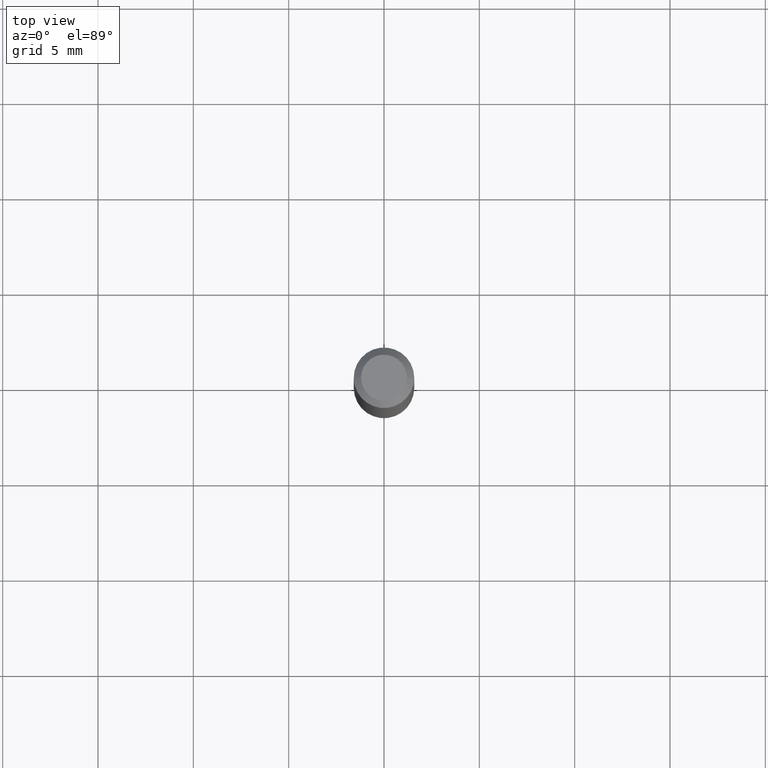
[diagram: clean part render]
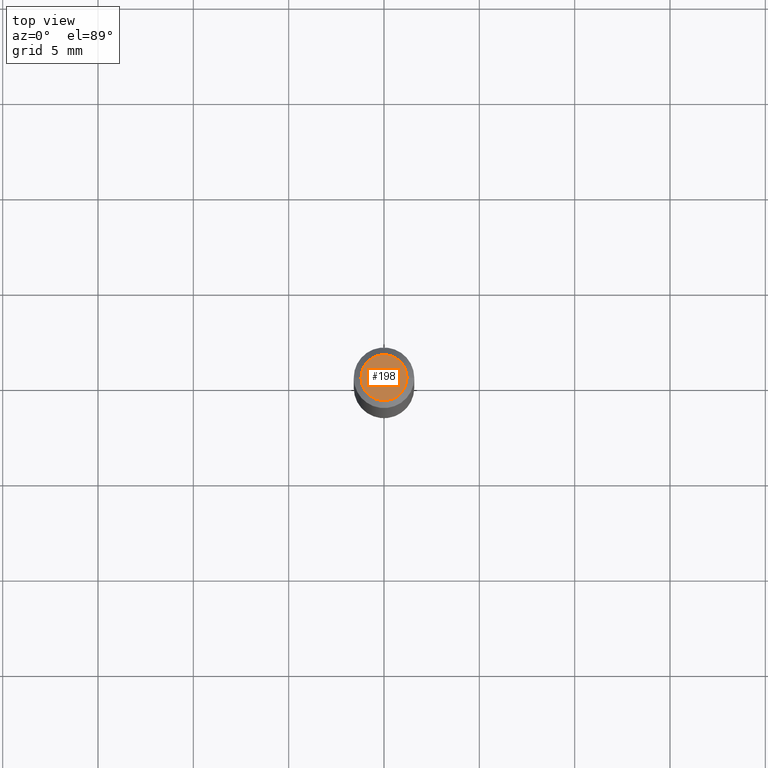
[diagram: same view with one face highlighted and labeled with its STEP entity id]
A machine part, top view. The second image highlights one B-rep face of the part: STEP entity #198.
In plain terms, the highlighted planar face has unit normal (0, -0, -1).
Its self-contained STEP definition (entity closure, byte-faithful):
#5 = CARTESIAN_POINT ( 'NONE',  ( 1.278896122067429216E-44, -1.825924719719875646E-30, -5.229656247639779395E-16 ) ) ;
#9 = CARTESIAN_POINT ( 'NONE',  ( 3.316907271900976096E-16, 0.04749999999999999362, -4.273281759770383169E-16 ) ) ;
#16 = AXIS2_PLACEMENT_3D ( 'NONE', #5, #244, #358 ) ;
#46 = DIRECTION ( 'NONE',  ( 2.438088387897960049E-29, -3.491481338843145188E-15, -1.000000000000000000 ) ) ;
#51 = EDGE_CURVE ( 'NONE', #197, #454, #264, .T. ) ;
#119 = CARTESIAN_POINT ( 'NONE',  ( 0.04749999999999999362, -4.035134999187587991E-16, -5.229656247639753758E-16 ) ) ;
#120 = CIRCLE ( 'NONE', #361, 0.04749999999999999362 ) ;
#133 = ORIENTED_EDGE ( 'NONE', *, *, #271, .T. ) ;
#148 = DIRECTION ( 'NONE',  ( -1.000000000000000000, 6.982962677686265922E-15, -4.876176775795935793E-29 ) ) ;
#197 = VERTEX_POINT ( 'NONE', #119 ) ;
#198 = ADVANCED_FACE ( 'NONE', ( #406 ), #366, .F. ) ;
#227 = AXIS2_PLACEMENT_3D ( 'NONE', #9, #46, #148 ) ;
#244 = DIRECTION ( 'NONE',  ( -2.445468806185136597E-29, 3.491481338843145583E-15, 1.000000000000000000 ) ) ;
#264 = CIRCLE ( 'NONE', #16, 0.04749999999999999362 ) ;
#271 = EDGE_CURVE ( 'NONE', #454, #197, #120, .T. ) ;
#311 = DIRECTION ( 'NONE',  ( -2.445468806185136597E-29, 3.491481338843145583E-15, 1.000000000000000000 ) ) ;
#313 = DIRECTION ( 'NONE',  ( 1.000000000000000000, -6.982962677686267499E-15, 4.852736867747366768E-29 ) ) ;
#321 = CARTESIAN_POINT ( 'NONE',  ( -0.04749999999999999362, 3.578768372314202124E-16, -5.229656247639803061E-16 ) ) ;
#358 = DIRECTION ( 'NONE',  ( 1.000000000000000000, -6.982962677686267499E-15, 4.852736867747366768E-29 ) ) ;
#361 = AXIS2_PLACEMENT_3D ( 'NONE', #373, #311, #313 ) ;
#366 = PLANE ( 'NONE',  #227 ) ;
#373 = CARTESIAN_POINT ( 'NONE',  ( 1.278896122067429216E-44, -1.825924719719875646E-30, -5.229656247639779395E-16 ) ) ;
#406 = FACE_OUTER_BOUND ( 'NONE', #422, .T. ) ;
#411 = ORIENTED_EDGE ( 'NONE', *, *, #51, .T. ) ;
#422 = EDGE_LOOP ( 'NONE', ( #133, #411 ) ) ;
#454 = VERTEX_POINT ( 'NONE', #321 ) ;